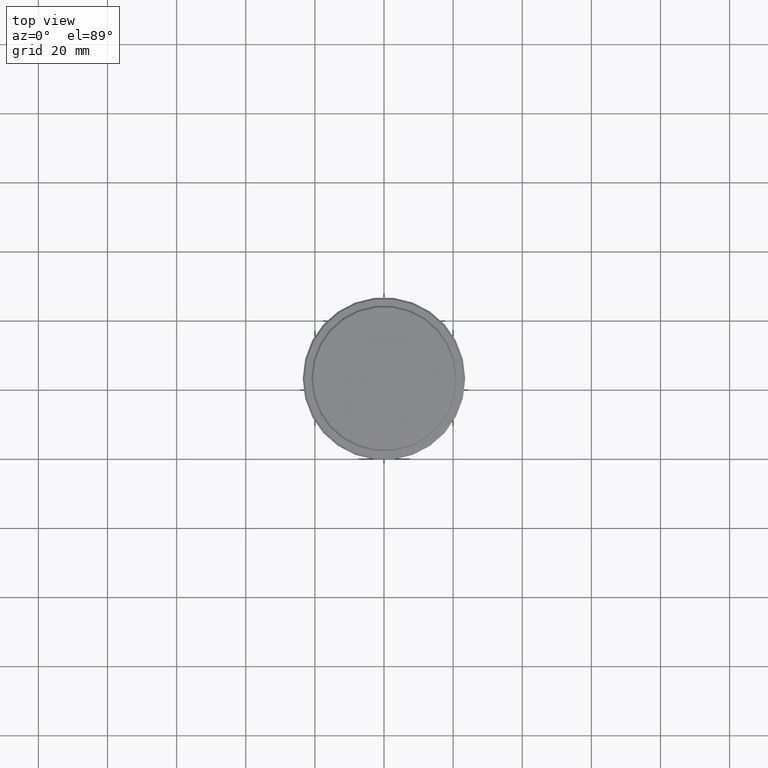
[diagram: clean part render]
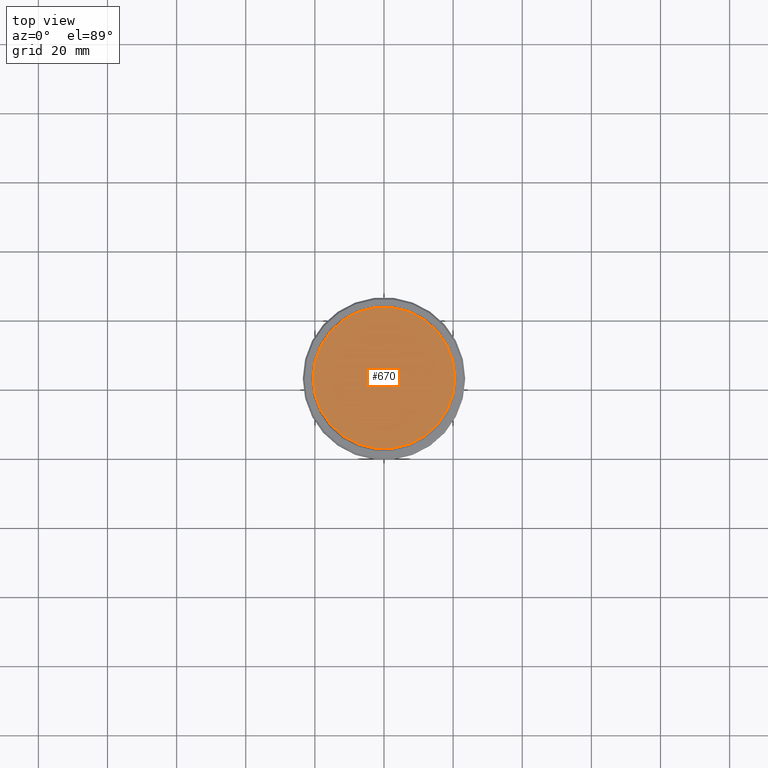
[diagram: same view with one face highlighted and labeled with its STEP entity id]
A machine part, top view. The second image highlights one B-rep face of the part: STEP entity #670.
In plain terms, the highlighted planar face has unit normal (0, -0, 1).
Its self-contained STEP definition (entity closure, byte-faithful):
#30 = CIRCLE ( 'NONE', #620, 20.50000000000001776 ) ;
#88 = DIRECTION ( 'NONE',  ( -0.000000000000000000, -0.000000000000000000, 1.000000000000000000 ) ) ;
#119 = DIRECTION ( 'NONE',  ( 0.000000000000000000, -0.000000000000000000, 1.000000000000000000 ) ) ;
#222 = PLANE ( 'NONE',  #1327 ) ;
#459 = VERTEX_POINT ( 'NONE', #1066 ) ;
#500 = ORIENTED_EDGE ( 'NONE', *, *, #834, .T. ) ;
#595 = AXIS2_PLACEMENT_3D ( 'NONE', #1081, #88, #649 ) ;
#600 = EDGE_CURVE ( 'NONE', #1245, #459, #641, .T. ) ;
#620 = AXIS2_PLACEMENT_3D ( 'NONE', #1236, #936, #1371 ) ;
#641 = CIRCLE ( 'NONE', #595, 20.50000000000001776 ) ;
#643 = DIRECTION ( 'NONE',  ( 1.000000000000000000, 0.000000000000000000, 0.000000000000000000 ) ) ;
#649 = DIRECTION ( 'NONE',  ( 1.000000000000000000, 0.000000000000000000, 0.000000000000000000 ) ) ;
#670 = ADVANCED_FACE ( 'NONE', ( #757 ), #222, .T. ) ;
#757 = FACE_OUTER_BOUND ( 'NONE', #1087, .T. ) ;
#834 = EDGE_CURVE ( 'NONE', #459, #1245, #30, .T. ) ;
#936 = DIRECTION ( 'NONE',  ( -0.000000000000000000, -0.000000000000000000, 1.000000000000000000 ) ) ;
#1066 = CARTESIAN_POINT ( 'NONE',  ( 20.50000000000001776, 2.541142108230759057E-15, 0.000000000000000000 ) ) ;
#1081 = CARTESIAN_POINT ( 'NONE',  ( 0.000000000000000000, 0.000000000000000000, 0.000000000000000000 ) ) ;
#1087 = EDGE_LOOP ( 'NONE', ( #1361, #500 ) ) ;
#1197 = CARTESIAN_POINT ( 'NONE',  ( 0.000000000000000000, 0.000000000000000000, 0.000000000000000000 ) ) ;
#1236 = CARTESIAN_POINT ( 'NONE',  ( 0.000000000000000000, 0.000000000000000000, 0.000000000000000000 ) ) ;
#1245 = VERTEX_POINT ( 'NONE', #1252 ) ;
#1252 = CARTESIAN_POINT ( 'NONE',  ( -20.50000000000001776, 0.000000000000000000, 0.000000000000000000 ) ) ;
#1327 = AXIS2_PLACEMENT_3D ( 'NONE', #1197, #119, #643 ) ;
#1361 = ORIENTED_EDGE ( 'NONE', *, *, #600, .T. ) ;
#1371 = DIRECTION ( 'NONE',  ( 1.000000000000000000, 0.000000000000000000, 0.000000000000000000 ) ) ;